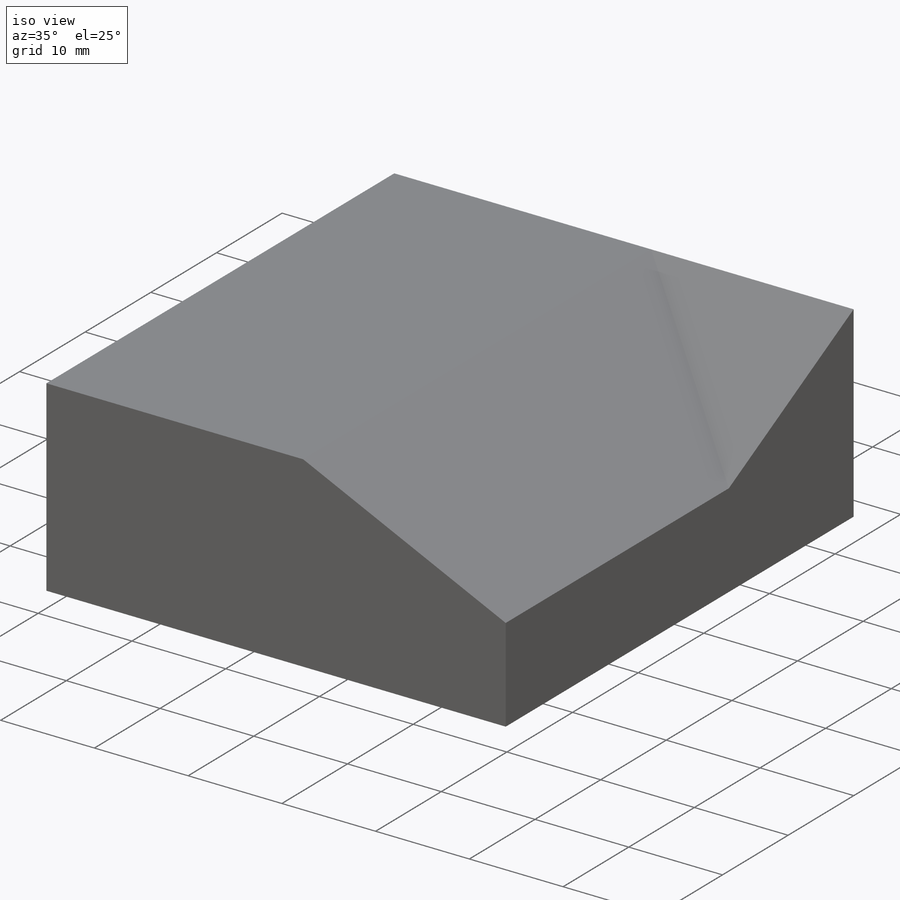
[diagram: iso view]
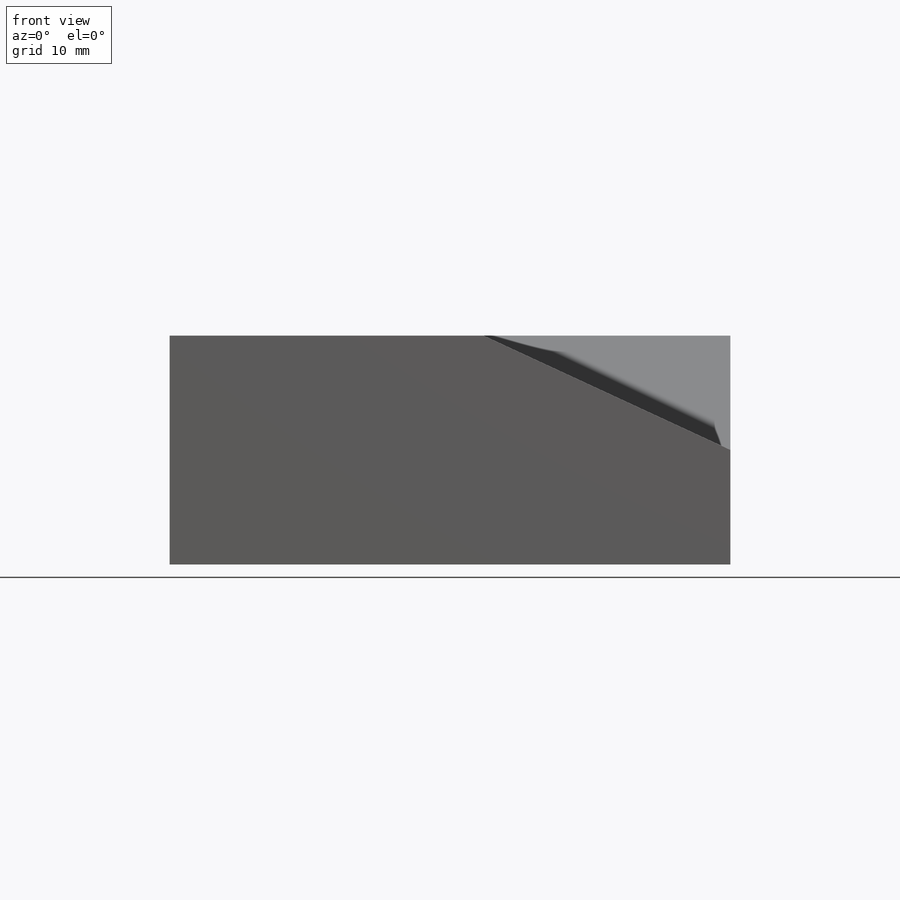
[diagram: front view]
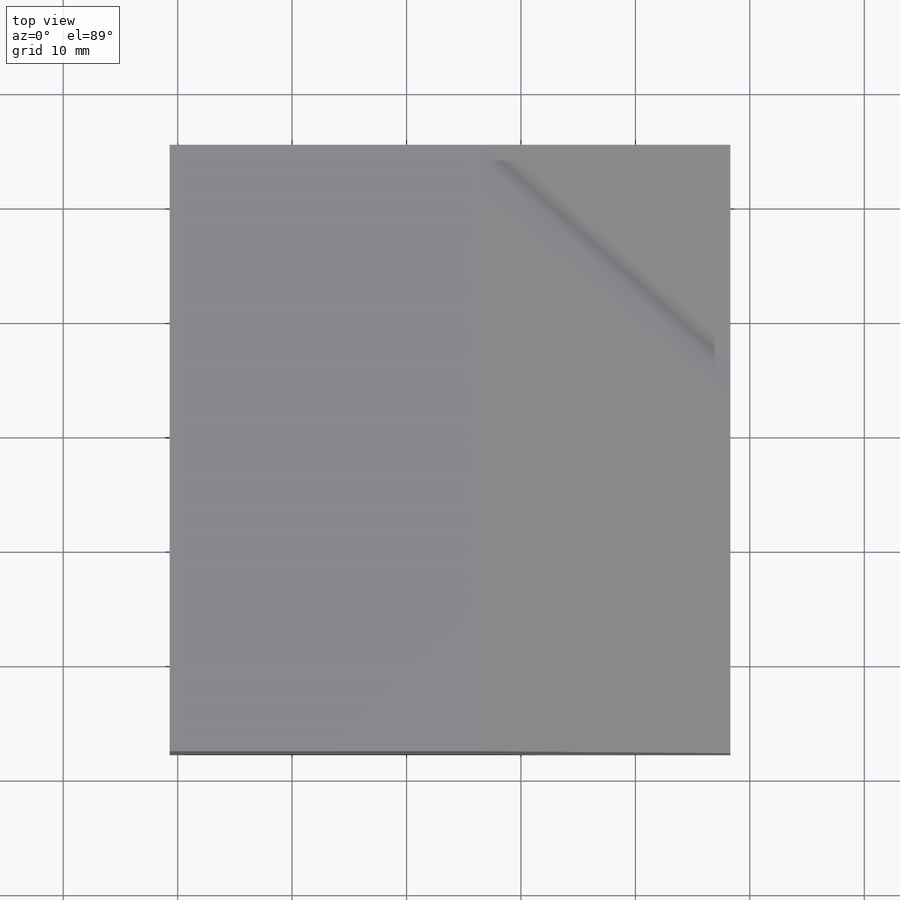
[diagram: top view]
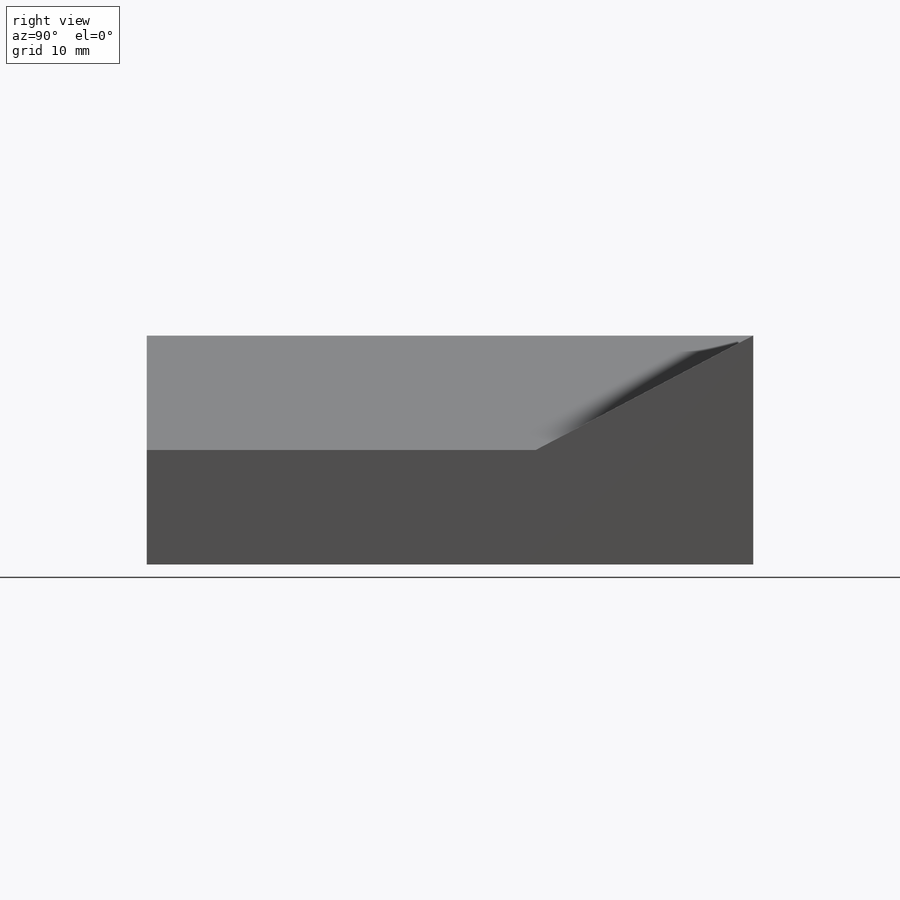
[diagram: right view]
SOLIDWORKS PART (.sldprt)
format: sldprt  version: not decoded by parser v0  size: 327,168 bytes
history: native  units: mm
features: sketch x11, cut_extrude x6, extrude x5, material x1 (+13 scaffold rows collapsed)
feature tree (36):
  scaffold x13  (default folders/planes/origin — collapsed)
  material  "Material <not specified>"
  sketch  "Sketch1"  dims[D1=53.0mm]
  extrude  "Boss-Extrude1"  Depth=20mm
  sketch  "Sketch3"  dims[D1=2.0mm]
  cut_extrude  "Cut-Extrude1"  Depth=18mm
  sketch  "Sketch4"  dims[c1.D1=25.4mm c2.D1=90.0deg c3.D1=21.6mm]
  cut_extrude  "Cut-Extrude2"  Depth=34mm
  sketch  "Sketch6"
  cut_extrude  "Cut-Extrude3"  Depth=21.6mm
  sketch  "Sketch8"  dims[c1.D1=1.0mm c2.D1=90.0deg c3.D1=1.0mm]
  extrude  "Boss-Extrude4"  Depth=53mm
  sketch  "Sketch11"  dims[D1=1.0mm]
  extrude  "Boss-Extrude5"  Depth=21.6mm
  sketch  "Sketch12"
  cut_extrude  "Cut-Extrude4"  Depth=18mm
  sketch  "Sketch13"
  cut_extrude  "Cut-Extrude5"  Depth=18mm
  sketch  "Sketch15"
  extrude  "Boss-Extrude6"  Depth=18mm
  sketch  "Sketch16"  dims[D1=2.45mm]
  extrude  "Boss-Extrude7"  Depth=18mm
  sketch  "Sketch17"  dims[D1=2.4mm]
  cut_extrude  "Cut-Extrude7"  Depth=2mm
decode coverage: 18 of 22 modeling features carry decoded parameters
note: suppression state not decoded; provenance and decode notes live in map.json
